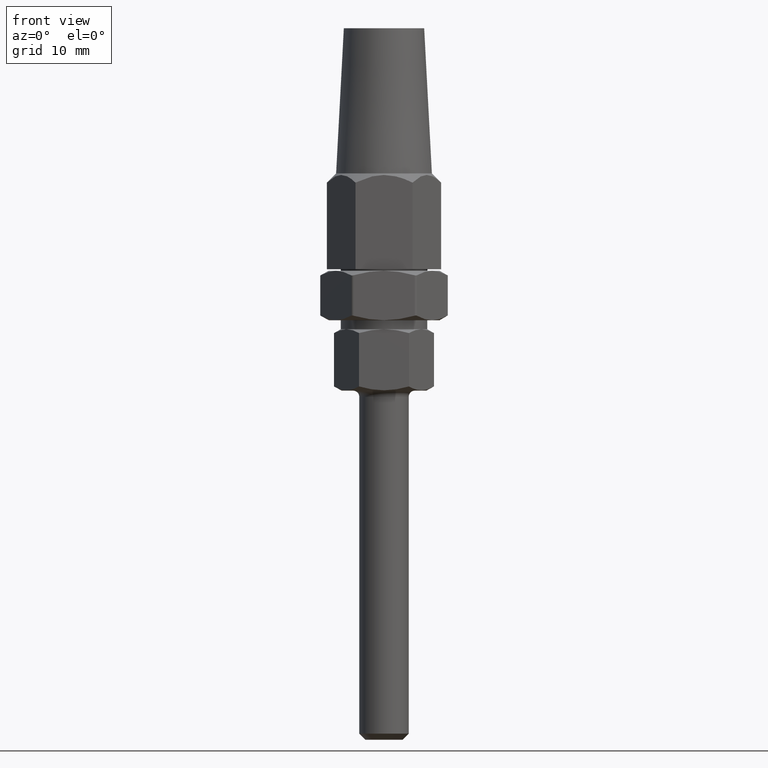
[diagram: clean part render]
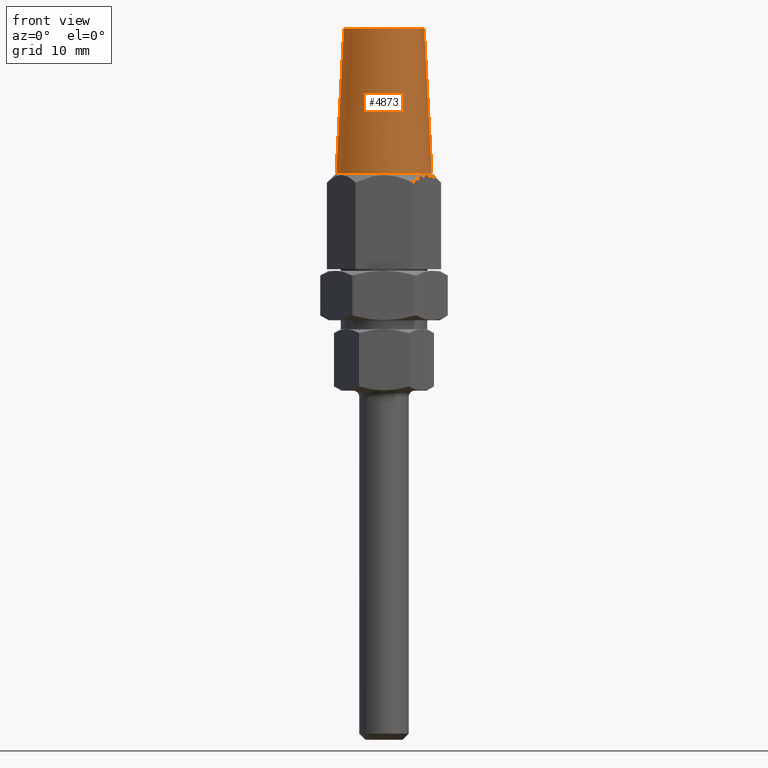
[diagram: same view with one face highlighted and labeled with its STEP entity id]
A machine part, front view. The second image highlights one B-rep face of the part: STEP entity #4873.
In plain terms, the highlighted conical surface has half-angle 3.045 deg.
Its self-contained STEP definition (entity closure, byte-faithful):
#132 = DIRECTION ( 'NONE',  ( -1.000000000000000000, 0.0000000000000000000, 0.0000000000000000000 ) ) ;
#451 = DIRECTION ( 'NONE',  ( -9.170458085121177300E-018, -0.0000000000000000000, -1.000000000000000000 ) ) ;
#514 = CONICAL_SURFACE ( 'NONE', #4983, 6.500000000000000000, 0.05314140884493544900 ) ;
#971 = CARTESIAN_POINT ( 'NONE',  ( 6.500000000000002700, 7.960204194457795500E-016, 39.00000000000000700 ) ) ;
#1060 = LINE ( 'NONE', #971, #4069 ) ;
#3454 = DIRECTION ( 'NONE',  ( -0.05311640040396672200, 0.0000000000000000000, -0.9985883275945725000 ) ) ;
#4069 = VECTOR ( 'NONE', #15931, 1000.000000000000100 ) ;
#4873 = ADVANCED_FACE ( 'NONE', ( #11425 ), #514, .T. ) ;
#4983 = AXIS2_PLACEMENT_3D ( 'NONE', #6020, #18064, #132 ) ;
#5056 = CIRCLE ( 'NONE', #5619, 6.500000000000000000 ) ;
#5290 = LINE ( 'NONE', #11118, #10624 ) ;
#5619 = AXIS2_PLACEMENT_3D ( 'NONE', #14995, #16546, #15256 ) ;
#6020 = CARTESIAN_POINT ( 'NONE',  ( 2.812752153957984000E-015, 0.0000000000000000000, 39.00000000000000700 ) ) ;
#6181 = ORIENTED_EDGE ( 'NONE', *, *, #9886, .T. ) ;
#6262 = ORIENTED_EDGE ( 'NONE', *, *, #18338, .F. ) ;
#7310 = VERTEX_POINT ( 'NONE', #10988 ) ;
#7848 = CARTESIAN_POINT ( 'NONE',  ( -6.499999999999997300, 0.0000000000000000000, 39.00000000000000700 ) ) ;
#9328 = CARTESIAN_POINT ( 'NONE',  ( 1.421421003193782500E-016, 0.0000000000000000000, 15.50000000000000000 ) ) ;
#9886 = EDGE_CURVE ( 'NONE', #7310, #17459, #5056, .T. ) ;
#10215 = VERTEX_POINT ( 'NONE', #14454 ) ;
#10624 = VECTOR ( 'NONE', #3454, 1000.000000000000100 ) ;
#10822 = DIRECTION ( 'NONE',  ( -1.000000000000000000, 0.0000000000000000000, 0.0000000000000000000 ) ) ;
#10988 = CARTESIAN_POINT ( 'NONE',  ( 6.500000000000002700, 8.725608443924891100E-016, 39.00000000000000700 ) ) ;
#11118 = CARTESIAN_POINT ( 'NONE',  ( -6.499999999999997300, 0.0000000000000000000, 39.00000000000000700 ) ) ;
#11425 = FACE_OUTER_BOUND ( 'NONE', #18685, .T. ) ;
#11521 = CARTESIAN_POINT ( 'NONE',  ( -7.750000000000000000, 0.0000000000000000000, 15.50000000000000000 ) ) ;
#11663 = EDGE_CURVE ( 'NONE', #17459, #12867, #5290, .T. ) ;
#11732 = AXIS2_PLACEMENT_3D ( 'NONE', #9328, #451, #10822 ) ;
#12454 = ORIENTED_EDGE ( 'NONE', *, *, #14228, .F. ) ;
#12867 = VERTEX_POINT ( 'NONE', #11521 ) ;
#13094 = CIRCLE ( 'NONE', #11732, 7.750000000000000000 ) ;
#14228 = EDGE_CURVE ( 'NONE', #7310, #10215, #1060, .T. ) ;
#14454 = CARTESIAN_POINT ( 'NONE',  ( 7.750000000000000000, 9.491012693391987800E-016, 15.50000000000000000 ) ) ;
#14995 = CARTESIAN_POINT ( 'NONE',  ( 2.812752153957984000E-015, 0.0000000000000000000, 39.00000000000000700 ) ) ;
#15256 = DIRECTION ( 'NONE',  ( -1.000000000000000000, 0.0000000000000000000, 0.0000000000000000000 ) ) ;
#15931 = DIRECTION ( 'NONE',  ( 0.05311640040396650000, 6.504882973694688700E-018, -0.9985883275945725000 ) ) ;
#16546 = DIRECTION ( 'NONE',  ( -1.136429810058980800E-016, -0.0000000000000000000, -1.000000000000000000 ) ) ;
#17459 = VERTEX_POINT ( 'NONE', #7848 ) ;
#18064 = DIRECTION ( 'NONE',  ( -1.136429810058980800E-016, -0.0000000000000000000, -1.000000000000000000 ) ) ;
#18338 = EDGE_CURVE ( 'NONE', #10215, #12867, #13094, .T. ) ;
#18685 = EDGE_LOOP ( 'NONE', ( #12454, #6181, #18704, #6262 ) ) ;
#18704 = ORIENTED_EDGE ( 'NONE', *, *, #11663, .T. ) ;